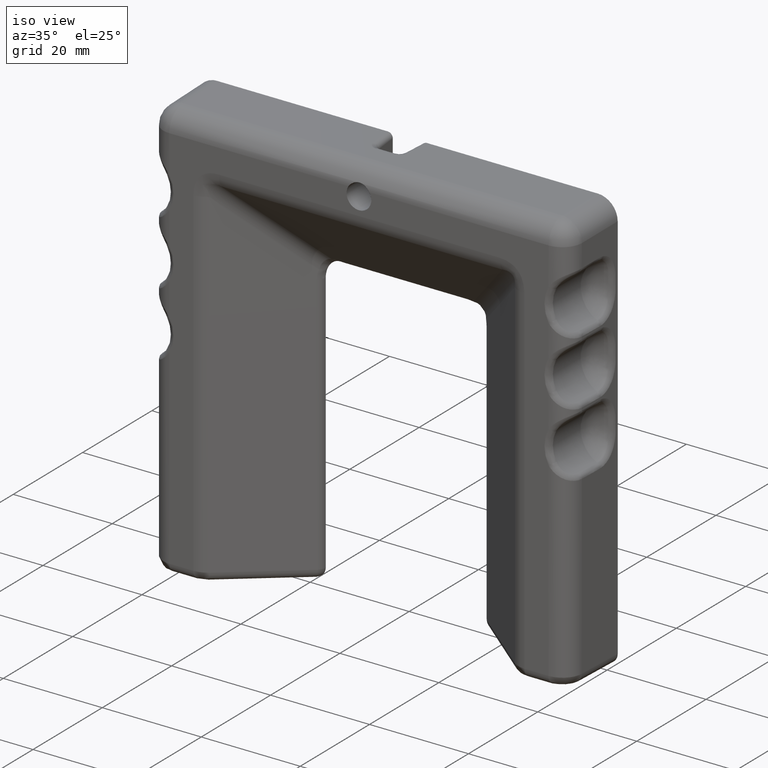
[diagram: clean part render]
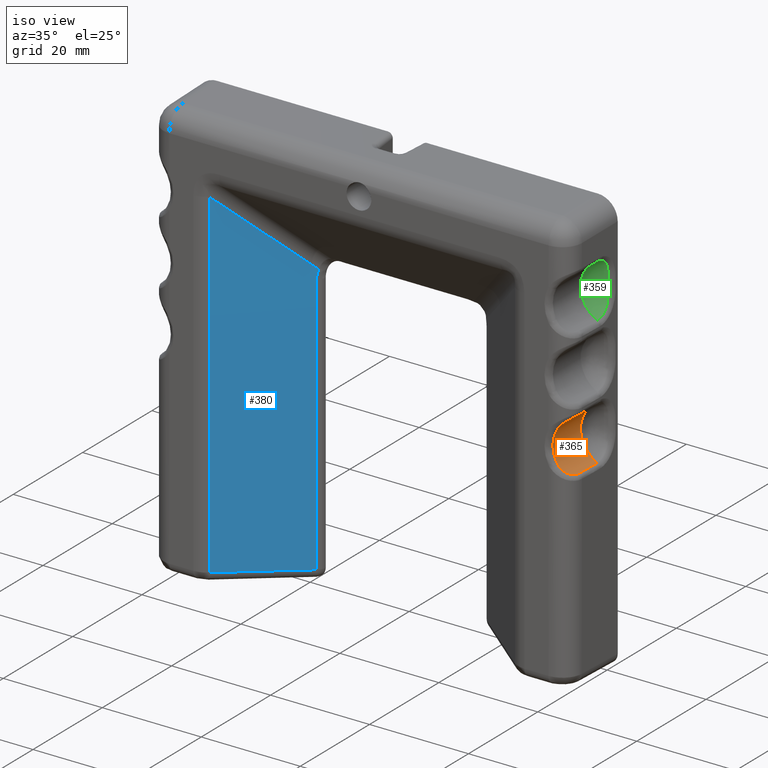
[diagram: same view with three faces highlighted in distinct colors, each labeled with its STEP entity id]
A machine part, iso view with three faces highlighted in distinct colors.
Their STEP definitions:

[orange] entity #365 — the highlighted cylindrical surface (edge-blend (fillet) strip) has radius 6 mm, axis along (-0, 1, -0).
#365=ADVANCED_FACE('',(#1507),#1506,.F.);
#1506=CYLINDRICAL_SURFACE('',#7112,6.00000000000E+000);
#1507=FACE_OUTER_BOUND('',#7113,.T.);
#7109=CARTESIAN_POINT('',(4.44999999999E+001,-4.70000000000E+000,-1.50000000005E+001));
#7110=DIRECTION('',(-1.48029736617E-016,1.00000000000E+000,-7.03076139676E-017));
#7111=DIRECTION('',(4.29024397896E-001,-0.00000000000E+000,-9.03292901561E-001));
#7112=AXIS2_PLACEMENT_3D('',#7109,#7110,#7111);
#7113=EDGE_LOOP('',(#8407,#8408,#8409,#8410,#8411,#8412));
#8407=ORIENTED_EDGE('',*,*,#9149,.F.);
#8408=ORIENTED_EDGE('',*,*,#9145,.F.);
#8409=ORIENTED_EDGE('',*,*,#9270,.T.);
#8410=ORIENTED_EDGE('',*,*,#9134,.F.);
#8411=ORIENTED_EDGE('',*,*,#9141,.F.);
#8412=ORIENTED_EDGE('',*,*,#9147,.T.);
#9134=EDGE_CURVE('',#10700,#10708,#10709,.T.);
#9141=EDGE_CURVE('',#10749,#10700,#10756,.T.);
#9145=EDGE_CURVE('',#10729,#10768,#10782,.T.);
#9147=EDGE_CURVE('',#10749,#10788,#10796,.T.);
#9149=EDGE_CURVE('',#10768,#10788,#10808,.T.);
#9270=EDGE_CURVE('',#10729,#10708,#11606,.T.);
#10700=VERTEX_POINT('',#13923);
#10708=VERTEX_POINT('',#13929);
#10709=CIRCLE('',#13933,1.91800106752E+004);
#10729=VERTEX_POINT('',#13943);
#10749=VERTEX_POINT('',#13985);
#10756=(BOUNDED_CURVE() B_SPLINE_CURVE(3,(#13990,#13991,#13992,#13993,#13994,#13995,#13996,#13997),.UNSPECIFIED.,.F.,.F.) B_SPLINE_CURVE_WITH_KNOTS((4,2,2,4),(0.00000000000E+000,2.50000000000E-001,5.00000000000E-001,1.00000000000E+000),.UNSPECIFIED.) CURVE() GEOMETRIC_REPRESENTATION_ITEM() RATIONAL_B_SPLINE_CURVE((1.00000000000E+000,1.00000000000E+000,1.00000000000E+000,1.00000000000E+000,1.00000000000E+000,1.00000000000E+000,1.00000000000E+000,1.00000000000E+000)) REPRESENTATION_ITEM('') );
#10768=VERTEX_POINT('',#14008);
#10782=CIRCLE('',#14021,1.91800106756E+004);
#10788=VERTEX_POINT('',#14022);
#10796=CIRCLE('',#14031,6.00000000000E+000);
#10808=(BOUNDED_CURVE() B_SPLINE_CURVE(3,(#14036,#14037,#14038,#14039,#14040,#14041),.UNSPECIFIED.,.F.,.F.) B_SPLINE_CURVE_WITH_KNOTS((4,2,4),(0.00000000000E+000,5.00000000000E-001,1.00000000000E+000),.UNSPECIFIED.) CURVE() GEOMETRIC_REPRESENTATION_ITEM() RATIONAL_B_SPLINE_CURVE((1.00000000000E+000,1.00000000000E+000,1.00000000000E+000,1.00000000000E+000,1.00000000000E+000,1.00000000000E+000)) REPRESENTATION_ITEM('') );
#11606=CIRCLE('',#14679,6.00000000000E+000);
#13923=CARTESIAN_POINT('',(4.17780426777E+001,-1.05523572193E+001,-9.65294956720E+000));
#13929=CARTESIAN_POINT('',(4.18536334405E+001,-5.50000000000E+000,-9.61513751074E+000));
#13930=CARTESIAN_POINT('',(4.39629284929E+001,1.35481693735E+002,-1.91891075503E+004));
#13931=DIRECTION('',(-9.99888095782E-001,1.49598099708E-002,1.74284831494E-011));
#13932=DIRECTION('',(1.13914734054E-004,7.61386703206E-003,-9.99971007606E-001));
#13933=AXIS2_PLACEMENT_3D('',#13930,#13931,#13932);
#13943=CARTESIAN_POINT('',(4.18536334405E+001,-5.50000000000E+000,-2.03848624902E+001));
#13985=CARTESIAN_POINT('',(3.92070057473E+001,-1.35000000000E+001,-1.21743652326E+001));
#13990=CARTESIAN_POINT('',(3.92070057473E+001,-1.35000000000E+001,-1.21743652326E+001));
#13991=CARTESIAN_POINT('',(3.94130774808E+001,-1.35000000000E+001,-1.17883505524E+001));
#13992=CARTESIAN_POINT('',(3.96665405957E+001,-1.34712093050E+001,-1.14193022342E+001));
#13993=CARTESIAN_POINT('',(4.02246294078E+001,-1.32759690709E+001,-1.07685779457E+001));
#13994=CARTESIAN_POINT('',(4.05339308879E+001,-1.31034065772E+001,-1.04838375576E+001));
#13995=CARTESIAN_POINT('',(4.13721808362E+001,-1.23210534604E+001,-9.83101006751E+000));
#13996=CARTESIAN_POINT('',(4.17647085228E+001,-1.14435893104E+001,-9.65973742173E+000));
#13997=CARTESIAN_POINT('',(4.17780426777E+001,-1.05523572193E+001,-9.65294956720E+000));
#14008=CARTESIAN_POINT('',(4.17780426777E+001,-1.05523572193E+001,-2.03470504337E+001));
#14018=CARTESIAN_POINT('',(4.39629292995E+001,1.35481693726E+002,1.91591075507E+004));
#14019=DIRECTION('',(-9.99888095782E-001,1.49598099712E-002,2.46243592872E-011));
#14020=DIRECTION('',(1.09973654062E-004,7.35044917912E-003,9.99972979036E-001));
#14021=AXIS2_PLACEMENT_3D('',#14018,#14019,#14020);
#14022=CARTESIAN_POINT('',(3.92070057473E+001,-1.35000000000E+001,-1.78256347683E+001));
#14028=CARTESIAN_POINT('',(4.44999999999E+001,-1.35000000000E+001,-1.50000000005E+001));
#14029=DIRECTION('',(0.00000000000E+000,-1.00000000000E+000,0.00000000000E+000));
#14030=DIRECTION('',(8.82165708776E-001,-0.00000000000E+000,-4.70939127977E-001));
#14031=AXIS2_PLACEMENT_3D('',#14028,#14029,#14030);
#14036=CARTESIAN_POINT('',(4.17780426777E+001,-1.05523572193E+001,-2.03470504337E+001));
#14037=CARTESIAN_POINT('',(4.17647199567E+001,-1.14428250910E+001,-2.03402683997E+001));
#14038=CARTESIAN_POINT('',(4.13792425839E+001,-1.23142565847E+001,-2.01744162540E+001));
#14039=CARTESIAN_POINT('',(4.02482167352E+001,-1.33702744036E+001,-1.92937221019E+001));
#14040=CARTESIAN_POINT('',(3.96192886748E+001,-1.35000000000E+001,-1.85979253668E+001));
#14041=CARTESIAN_POINT('',(3.92070057473E+001,-1.35000000000E+001,-1.78256347683E+001));
#14676=CARTESIAN_POINT('',(4.44999999999E+001,-5.50000000000E+000,-1.50000000005E+001));
#14677=DIRECTION('',(0.00000000000E+000,1.00000000000E+000,0.00000000000E+000));
#14678=DIRECTION('',(4.41061093239E-001,-0.00000000000E+000,8.97477081619E-001));
#14679=AXIS2_PLACEMENT_3D('',#14676,#14677,#14678);

[blue] entity #380 — the highlighted planar face has unit normal (-0.6426, 0.7662, 0).
#380=ADVANCED_FACE('',(#1657),#1656,.F.);
#1656=PLANE('',#7187);
#1657=FACE_OUTER_BOUND('',#7188,.T.);
#7184=CARTESIAN_POINT('',(-1.55256611563E+001,-6.82812582696E-001,-6.38798228508E+001));
#7185=DIRECTION('',(-6.42612261976E-001,7.66191543126E-001,0.00000000000E+000));
#7186=DIRECTION('',(-7.66191543126E-001,-6.42612261976E-001,0.00000000000E+000));
#7187=AXIS2_PLACEMENT_3D('',#7184,#7185,#7186);
#7188=EDGE_LOOP('',(#8508,#8509,#8510,#8511,#8512));
#8508=ORIENTED_EDGE('',*,*,#9054,.F.);
#8509=ORIENTED_EDGE('',*,*,#9061,.F.);
#8510=ORIENTED_EDGE('',*,*,#9263,.F.);
#8511=ORIENTED_EDGE('',*,*,#9262,.F.);
#8512=ORIENTED_EDGE('',*,*,#9211,.F.);
#9054=EDGE_CURVE('',#10164,#10172,#10173,.T.);
#9061=EDGE_CURVE('',#10213,#10164,#10220,.T.);
#9211=EDGE_CURVE('',#10172,#11220,#11221,.T.);
#9262=EDGE_CURVE('',#11220,#11532,#11558,.T.);
#9263=EDGE_CURVE('',#11532,#10213,#11564,.T.);
#10164=VERTEX_POINT('',#13482);
#10172=VERTEX_POINT('',#13488);
#10173=LINE('',#13489,#13490);
#10213=VERTEX_POINT('',#13515);
#10220=(BOUNDED_CURVE() B_SPLINE_CURVE(2,(#13520,#13521,#13522),.UNSPECIFIED.,.F.,.F.) B_SPLINE_CURVE_WITH_KNOTS((3,3),(0.00000000000E+000,1.00000000000E+000),.UNSPECIFIED.) CURVE() GEOMETRIC_REPRESENTATION_ITEM() RATIONAL_B_SPLINE_CURVE((1.00000000000E+000,9.87723871208E-001,1.00000000000E+000)) REPRESENTATION_ITEM('') );
#11220=VERTEX_POINT('',#14441);
#11221=LINE('',#14442,#14443);
#11532=VERTEX_POINT('',#14632);
#11558=LINE('',#14647,#14648);
#11564=LINE('',#14650,#14651);
#13482=CARTESIAN_POINT('',(-1.72147754760E+001,-2.09948910896E+000,-4.00000000000E+000));
#13488=CARTESIAN_POINT('',(-1.72147754760E+001,-2.09948910896E+000,-5.69985240038E+001));
#13489=CARTESIAN_POINT('',(-1.72147754760E+001,-2.09948910896E+000,-4.00000000000E+000));
#13490=VECTOR('',#13491,5.29985240038E+001);
#13491=DIRECTION('',(0.00000000000E+000,0.00000000000E+000,-1.00000000000E+000));
#13515=CARTESIAN_POINT('',(-1.69219568251E+001,-1.85389927267E+000,-2.14849222279E+000));
#13520=CARTESIAN_POINT('',(-1.69219568251E+001,-1.85389927268E+000,-2.14849222279E+000));
#13521=CARTESIAN_POINT('',(-1.72147754760E+001,-2.09948910896E+000,-3.05109126338E+000));
#13522=CARTESIAN_POINT('',(-1.72147754760E+001,-2.09948910896E+000,-4.00000000000E+000));
#14441=CARTESIAN_POINT('',(-3.08849135134E+001,-1.35647661725E+001,-5.67983968483E+001));
#14442=CARTESIAN_POINT('',(-1.72147754760E+001,-2.09948910896E+000,-5.69985240038E+001));
#14443=VECTOR('',#14444,1.78427941473E+001);
#14444=DIRECTION('',(-7.66143347533E-001,-6.42571839865E-001,1.12161331859E-002));
#14632=CARTESIAN_POINT('',(-3.08849135134E+001,-1.35647661725E+001,1.18144644655E+001));
#14647=CARTESIAN_POINT('',(-3.08849135134E+001,-1.35647661725E+001,-5.67983968483E+001));
#14648=VECTOR('',#14649,6.86128613138E+001);
#14649=DIRECTION('',(0.00000000000E+000,0.00000000000E+000,1.00000000000E+000));
#14650=CARTESIAN_POINT('',(-3.08849135134E+001,-1.35647661725E+001,1.18144644655E+001));
#14651=VECTOR('',#14652,2.29580644328E+001);
#14652=DIRECTION('',(6.08193984694E-001,5.10098180711E-001,-6.08193984694E-001));

[green] entity #359 — the highlighted face is a freeform B-spline surface patch.
#359=ADVANCED_FACE('',(#1447),#1446,.F.);
#1446=( BOUNDED_SURFACE() B_SPLINE_SURFACE( 2,2,((#7016,#7017,#7018,#7019,#7020),(#7021,#7022,#7023,#7024,#7025),(#7026,#7027,#7028,#7029,#7030),(#7031,#7032,#7033,#7034,#7035),(#7036,#7037,#7038,#7039,#7040)), .UNSPECIFIED.,.F.,.F.,.F.) B_SPLINE_SURFACE_WITH_KNOTS((3,2,3),(3,2,3),(-4.69176022644E-004,1.18296505213E+000,2.36639928028E+000),(0.00000000000E+000,1.34087040194E+000,2.68174080387E+000), .UNSPECIFIED. ) GEOMETRIC_REPRESENTATION_ITEM() RATIONAL_B_SPLINE_SURFACE(((1.00000000000E+000,7.83551337959E-001,1.00000000000E+000,7.83551337959E-001,1.00000000000E+000),(8.29984119220E-001,6.50335167100E-001,8.29984119220E-001,6.50335167100E-001,8.29984119220E-001),(1.00000000000E+000,7.83551337959E-001,1.00000000000E+000,7.83551337959E-001,1.00000000000E+000),(8.29984119220E-001,6.50335167100E-001,8.29984119220E-001,6.50335167100E-001,8.29984119220E-001),(1.00000000000E+000,7.83551337959E-001,1.00000000000E+000,7.83551337959E-001,1.00000000000E+000))) REPRESENTATION_ITEM('') SURFACE() );
#1447=FACE_OUTER_BOUND('',#7041,.T.);
#7016=CARTESIAN_POINT('',(4.31325680482E+001,-5.50164211602E+000,1.68420993854E+001));
#7017=CARTESIAN_POINT('',(3.85000006711E+001,-5.50164211602E+000,1.57577767418E+001));
#7018=CARTESIAN_POINT('',(3.85000003852E+001,-5.50164211602E+000,1.10000003601E+001));
#7019=CARTESIAN_POINT('',(3.85000000993E+001,-5.50164211602E+000,6.24222397829E+000));
#7020=CARTESIAN_POINT('',(4.31325673461E+001,-5.50164211602E+000,5.15790077798E+000));
#7021=CARTESIAN_POINT('',(4.31323165372E+001,-3.14948342201E+000,1.68431739195E+001));
#7022=CARTESIAN_POINT('',(3.84988970946E+001,-3.14948342201E+000,1.57586518370E+001));
#7023=CARTESIAN_POINT('',(3.84988968086E+001,-3.14948342201E+000,1.10000003601E+001));
#7024=CARTESIAN_POINT('',(3.84988965227E+001,-3.14948342201E+000,6.24134888323E+000));
#7025=CARTESIAN_POINT('',(4.31323158350E+001,-3.14948342201E+000,5.15682624397E+000));
#7026=CARTESIAN_POINT('',(4.36285729898E+001,-2.25994007072E+000,1.47230102703E+001));
#7027=CARTESIAN_POINT('',(4.06763644110E+001,-2.25994007072E+000,1.40320010847E+001));
#7028=CARTESIAN_POINT('',(4.06763642288E+001,-2.25994007072E+000,1.10000002293E+001));
#7029=CARTESIAN_POINT('',(4.06763640466E+001,-2.25994007072E+000,7.96799937387E+000));
#7030=CARTESIAN_POINT('',(4.36285725424E+001,-2.25994007072E+000,7.27698983347E+000));
#7031=CARTESIAN_POINT('',(4.41248294423E+001,-1.37039671944E+000,1.26028466212E+001));
#7032=CARTESIAN_POINT('',(4.28538317274E+001,-1.37039671944E+000,1.23053503324E+001));
#7033=CARTESIAN_POINT('',(4.28538316489E+001,-1.37039671944E+000,1.10000000985E+001));
#7034=CARTESIAN_POINT('',(4.28538315705E+001,-1.37039671944E+000,9.69464986451E+000));
#7035=CARTESIAN_POINT('',(4.41248292497E+001,-1.37039671944E+000,9.39715342298E+000));
#7036=CARTESIAN_POINT('',(4.44999999999E+001,-3.05051025722E+000,1.09999999995E+001));
#7037=CARTESIAN_POINT('',(4.44999999999E+001,-3.05051025722E+000,1.09999999995E+001));
#7038=CARTESIAN_POINT('',(4.44999999999E+001,-3.05051025722E+000,1.09999999995E+001));
#7039=CARTESIAN_POINT('',(4.44999999999E+001,-3.05051025722E+000,1.09999999995E+001));
#7040=CARTESIAN_POINT('',(4.44999999999E+001,-3.05051025722E+000,1.09999999995E+001));
#7041=EDGE_LOOP('',(#8383,#8384));
#8383=ORIENTED_EDGE('',*,*,#9103,.F.);
#8384=ORIENTED_EDGE('',*,*,#9268,.F.);
#9103=EDGE_CURVE('',#10468,#10489,#10502,.T.);
#9268=EDGE_CURVE('',#10489,#10468,#11594,.T.);
#10468=VERTEX_POINT('',#13681);
#10489=VERTEX_POINT('',#13696);
#10502=(BOUNDED_CURVE() B_SPLINE_CURVE(3,(#13719,#13720,#13721,#13722,#13723,#13724,#13725,#13726,#13727,#13728,#13729,#13730,#13731,#13732,#13733,#13734,#13735,#13736),.UNSPECIFIED.,.F.,.F.) B_SPLINE_CURVE_WITH_KNOTS((4,2,2,2,2,2,2,2,4),(0.00000000000E+000,1.25000000000E-001,2.50000000000E-001,3.75000000000E-001,5.00000000000E-001,6.25000000000E-001,7.50000000000E-001,8.75000000000E-001,1.00000000000E+000),.UNSPECIFIED.) CURVE() GEOMETRIC_REPRESENTATION_ITEM() RATIONAL_B_SPLINE_CURVE((1.00000000000E+000,1.00000000000E+000,1.00000000000E+000,1.00000000000E+000,1.00000000000E+000,1.00000000000E+000,1.00000000000E+000,1.00000000000E+000,1.00000000000E+000,1.00000000000E+000,1.00000000000E+000,1.00000000000E+000,1.00000000000E+000,1.00000000000E+000,1.00000000000E+000,1.00000000000E+000,1.00000000000E+000,1.00000000000E+000)) REPRESENTATION_ITEM('') );
#11594=CIRCLE('',#14671,6.00000000000E+000);
#13681=CARTESIAN_POINT('',(4.18536334405E+001,-5.50000000000E+000,1.63848624893E+001));
#13696=CARTESIAN_POINT('',(4.18536334405E+001,-5.50000000000E+000,5.61513750983E+000));
#13719=CARTESIAN_POINT('',(4.18536334405E+001,-5.50000000000E+000,1.63848624893E+001));
#13720=CARTESIAN_POINT('',(4.18654080392E+001,-4.88789353806E+000,1.63906490630E+001));
#13721=CARTESIAN_POINT('',(4.18701032881E+001,-4.28291698101E+000,1.62084394740E+001));
#13722=CARTESIAN_POINT('',(4.18594916644E+001,-3.27206908059E+000,1.55532531202E+001));
#13723=CARTESIAN_POINT('',(4.18435494214E+001,-2.86447370204E+000,1.50779004196E+001));
#13724=CARTESIAN_POINT('',(4.17842595197E+001,-2.31939859052E+000,1.40118329010E+001));
#13725=CARTESIAN_POINT('',(4.17376249080E+001,-2.17414784296E+000,1.34125439572E+001));
#13726=CARTESIAN_POINT('',(4.16449012336E+001,-2.03218755440E+000,1.22152046559E+001));
#13727=CARTESIAN_POINT('',(4.16038487110E+001,-2.02251373048E+000,1.16076121061E+001));
#13728=CARTESIAN_POINT('',(4.16037751171E+001,-2.02247803547E+000,1.03942348787E+001));
#13729=CARTESIAN_POINT('',(4.16447840184E+001,-2.03210524677E+000,9.78639572629E+000));
#13730=CARTESIAN_POINT('',(4.17375241381E+001,-2.17389664271E+000,8.58867070042E+000));
#13731=CARTESIAN_POINT('',(4.17840677194E+001,-2.31761564846E+000,7.99163000582E+000));
#13732=CARTESIAN_POINT('',(4.18437482889E+001,-2.86632161803E+000,6.91850959748E+000));
#13733=CARTESIAN_POINT('',(4.18596464624E+001,-3.27743957283E+000,6.44148427518E+000));
#13734=CARTESIAN_POINT('',(4.18700880635E+001,-4.29096716396E+000,5.78814821526E+000));
#13735=CARTESIAN_POINT('',(4.18653770853E+001,-4.88950268522E+000,5.60936614818E+000));
#13736=CARTESIAN_POINT('',(4.18536334405E+001,-5.50000000000E+000,5.61513750983E+000));
#14668=CARTESIAN_POINT('',(4.44999999999E+001,-5.50000000000E+000,1.09999999995E+001));
#14669=DIRECTION('',(0.00000000000E+000,1.00000000000E+000,0.00000000000E+000));
#14670=DIRECTION('',(4.41061093239E-001,-0.00000000000E+000,8.97477081619E-001));
#14671=AXIS2_PLACEMENT_3D('',#14668,#14669,#14670);